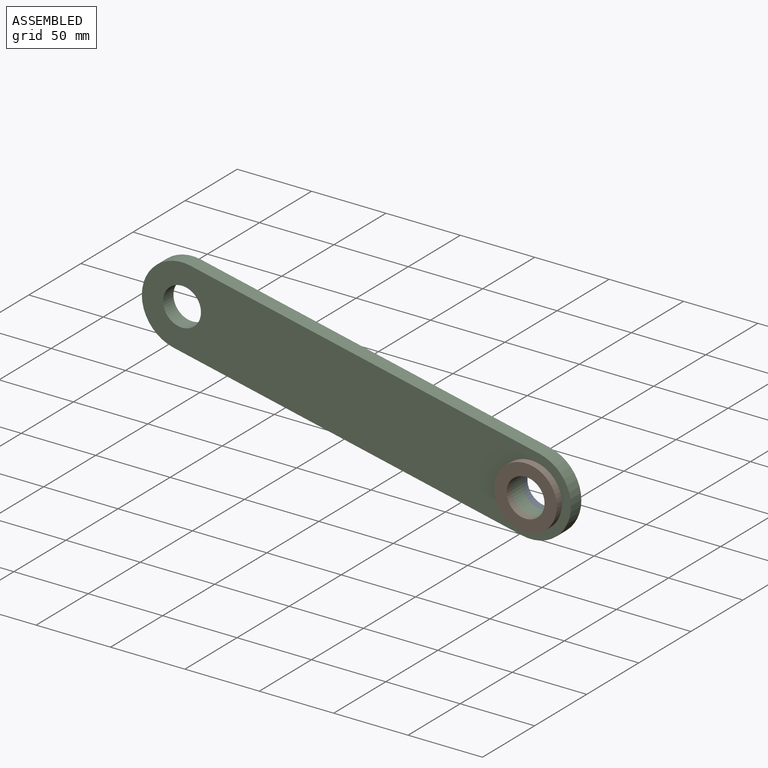
[diagram: assembled view]
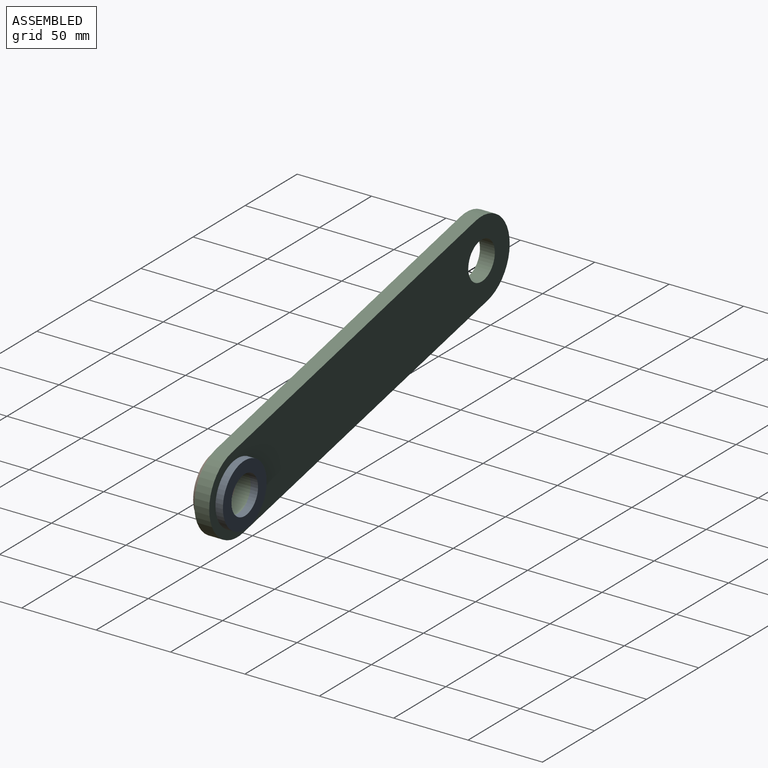
[diagram: assembled view, second angle]
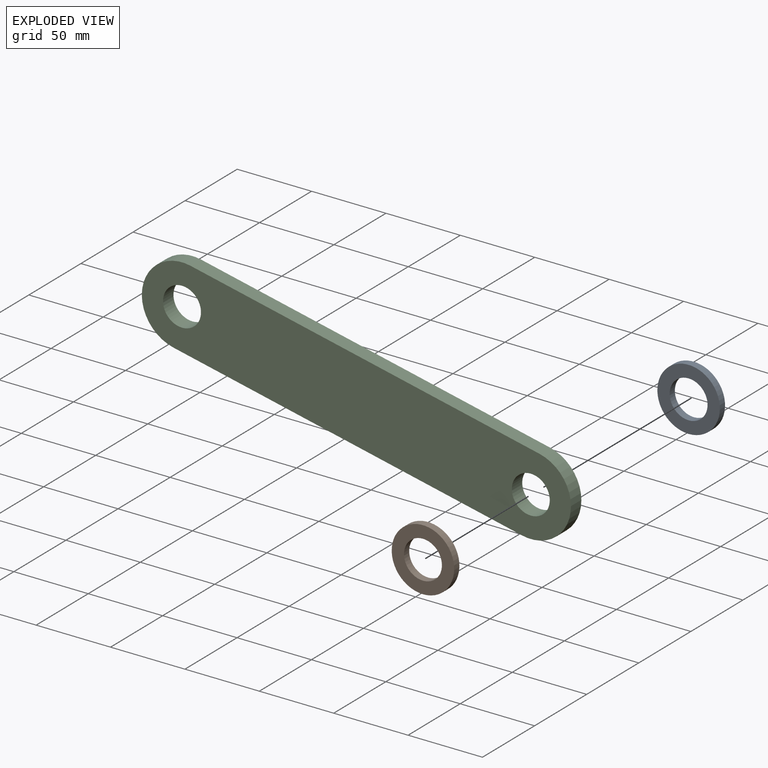
[diagram: exploded view]
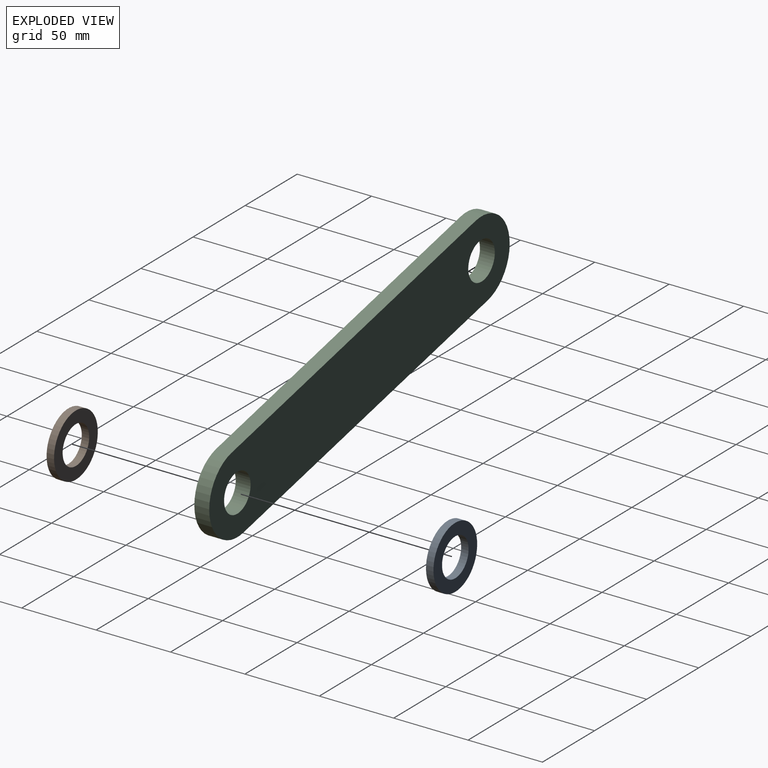
[diagram: exploded view, second angle]
ASSEMBLY  parts=3 mates=2
PART A: 4 faces, bbox 42x5x42 mm
  f0: cylinder r=12.75mm len=25.5mm, axis (0,-1,0), area 400.6mm2, adj f2,f3
  f1: cylinder r=21mm len=42mm, axis (0,-1,0), area 659.7mm2, adj f2,f3
  f2: plane 42x42mm, normal (0,1,0), area 874.7mm2, adj f0,f1
  f3: plane 42x42mm, normal (0,-1,0), area 874.7mm2, adj f0,f1
PART B: same geometry as A
PART C: 8 faces, bbox 288.4x10x105.5 mm
  f0: plane 234.42x51.46mm, normal (-0.21,0,-0.98), area 2400mm2, adj f1,f4,f6,f7
  f1: cylinder r=27mm len=53.37mm, axis (0,1,0), area 848.2mm2, adj f0,f2,f6,f7
  f2: plane 234.42x51.46mm, normal (0.21,0,0.98), area 2400mm2, adj f1,f4,f6,f7
  f3: cylinder r=12.75mm len=25.5mm, axis (0,1,0), area 801.1mm2, adj f6,f7
  f4: cylinder r=27mm len=53.37mm, axis (0,1,0), area 848.2mm2, adj f0,f2,f6,f7
  f5: cylinder r=12.75mm len=25.5mm, axis (0,1,0), area 801.1mm2, adj f6,f7
  f6: plane 288.42x105.46mm, normal (0,-1,0), area 14228.8mm2, adj f0,f1,f2,f3,f4,f5
  f7: plane 288.42x105.46mm, normal (0,1,0), area 14228.8mm2, adj f0,f1,f2,f3,f4,f5
PLACE A at identity
PLACE B t=(0,-15,0)mm
PLACE C at identity
MATE revolute A.f0 <-> C.f1  axis (0,-1,0) through (264.42,0,78.54)mm
MATE revolute B.f0 <-> C.f1  axis (0,1,0) through (264.42,-10,78.54)mm
